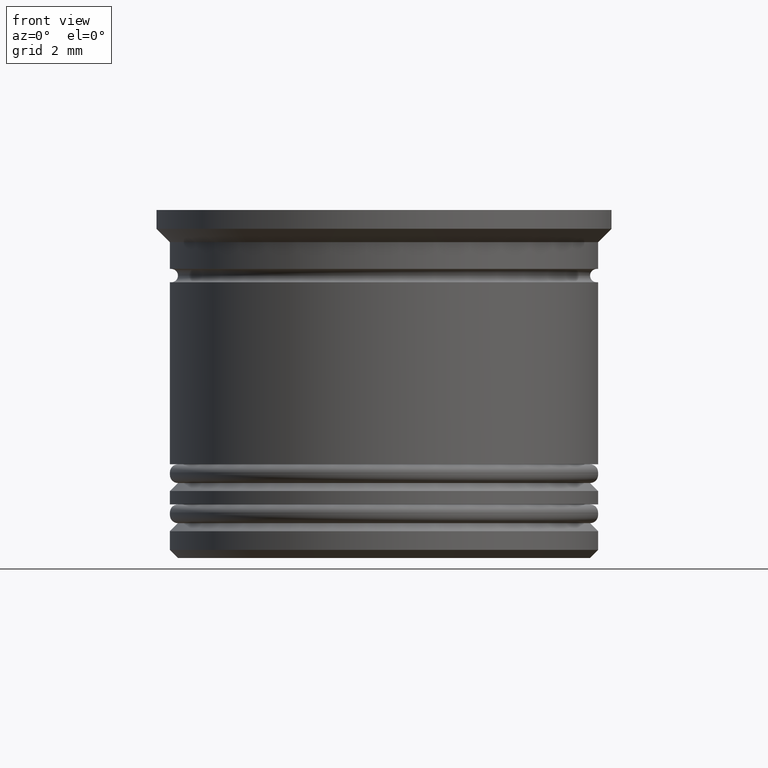
[diagram: clean part render]
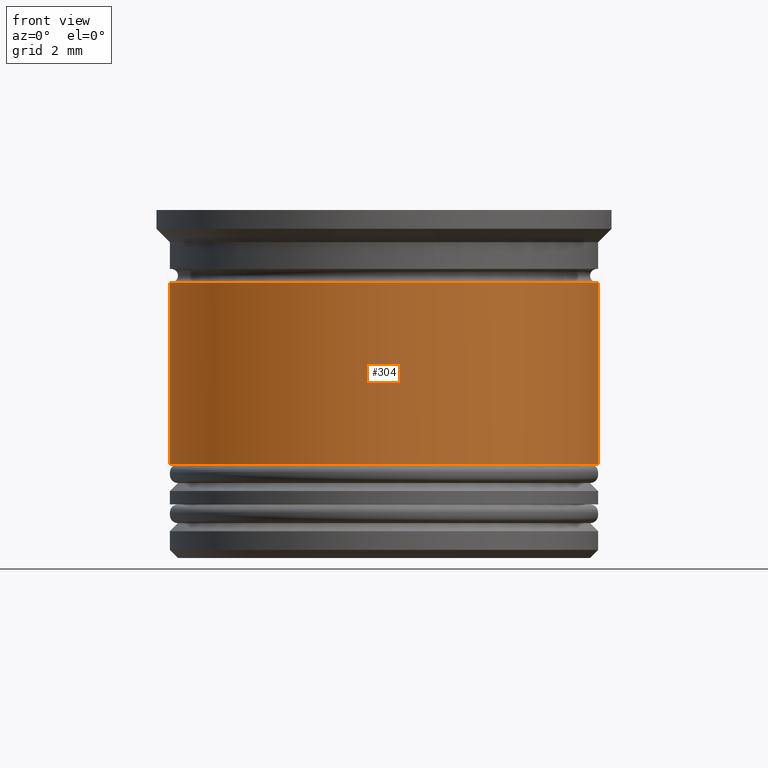
[diagram: same view with one face highlighted and labeled with its STEP entity id]
A machine part, front view. The second image highlights one B-rep face of the part: STEP entity #304.
In plain terms, the highlighted cylindrical surface (partial cylindrical patch) has radius 8 mm, axis along (-0, -0, 1).
Its self-contained STEP definition (entity closure, byte-faithful):
#3 = DIRECTION ( 'NONE',  ( 1.000000000000000000, 0.000000000000000000, 0.000000000000000000 ) ) ;
#15 = VECTOR ( 'NONE', #1909, 1000.000000000000000 ) ;
#40 = AXIS2_PLACEMENT_3D ( 'NONE', #235, #899, #1773 ) ;
#235 = CARTESIAN_POINT ( 'NONE',  ( 0.000000000000000000, 0.000000000000000000, -2.700000000000000178 ) ) ;
#261 = LINE ( 'NONE', #993, #859 ) ;
#304 = ADVANCED_FACE ( 'NONE', ( #405 ), #1180, .T. ) ;
#405 = FACE_OUTER_BOUND ( 'NONE', #1082, .T. ) ;
#468 = VERTEX_POINT ( 'NONE', #1988 ) ;
#575 = DIRECTION ( 'NONE',  ( -0.000000000000000000, -0.000000000000000000, 1.000000000000000000 ) ) ;
#601 = DIRECTION ( 'NONE',  ( 1.000000000000000000, 0.000000000000000000, 0.000000000000000000 ) ) ;
#612 = CARTESIAN_POINT ( 'NONE',  ( -8.000000000000001776, 9.797174393178827630E-16, -9.500000000000000000 ) ) ;
#721 = EDGE_CURVE ( 'NONE', #468, #1244, #977, .T. ) ;
#775 = ORIENTED_EDGE ( 'NONE', *, *, #1273, .T. ) ;
#809 = CARTESIAN_POINT ( 'NONE',  ( 8.000000000000001776, 0.000000000000000000, -9.500000000000000000 ) ) ;
#859 = VECTOR ( 'NONE', #1017, 1000.000000000000000 ) ;
#861 = VERTEX_POINT ( 'NONE', #612 ) ;
#866 = CARTESIAN_POINT ( 'NONE',  ( 0.000000000000000000, 0.000000000000000000, 0.000000000000000000 ) ) ;
#899 = DIRECTION ( 'NONE',  ( -0.000000000000000000, -0.000000000000000000, 1.000000000000000000 ) ) ;
#977 = CIRCLE ( 'NONE', #40, 8.000000000000000000 ) ;
#993 = CARTESIAN_POINT ( 'NONE',  ( 8.000000000000000000, 0.000000000000000000, 0.000000000000000000 ) ) ;
#1017 = DIRECTION ( 'NONE',  ( -0.000000000000000000, -0.000000000000000000, 1.000000000000000000 ) ) ;
#1034 = DIRECTION ( 'NONE',  ( -0.000000000000000000, -0.000000000000000000, 1.000000000000000000 ) ) ;
#1082 = EDGE_LOOP ( 'NONE', ( #1779, #775, #1256, #1309 ) ) ;
#1180 = CYLINDRICAL_SURFACE ( 'NONE', #1778, 8.000000000000000000 ) ;
#1244 = VERTEX_POINT ( 'NONE', #1932 ) ;
#1246 = CIRCLE ( 'NONE', #1906, 8.000000000000001776 ) ;
#1256 = ORIENTED_EDGE ( 'NONE', *, *, #1456, .T. ) ;
#1273 = EDGE_CURVE ( 'NONE', #861, #1795, #1246, .T. ) ;
#1309 = ORIENTED_EDGE ( 'NONE', *, *, #721, .F. ) ;
#1415 = CARTESIAN_POINT ( 'NONE',  ( -8.000000000000000000, 9.797174393178825657E-16, 0.000000000000000000 ) ) ;
#1456 = EDGE_CURVE ( 'NONE', #1795, #1244, #261, .T. ) ;
#1739 = LINE ( 'NONE', #1415, #15 ) ;
#1773 = DIRECTION ( 'NONE',  ( 1.000000000000000000, 0.000000000000000000, 0.000000000000000000 ) ) ;
#1778 = AXIS2_PLACEMENT_3D ( 'NONE', #866, #1034, #601 ) ;
#1779 = ORIENTED_EDGE ( 'NONE', *, *, #1840, .F. ) ;
#1795 = VERTEX_POINT ( 'NONE', #809 ) ;
#1840 = EDGE_CURVE ( 'NONE', #861, #468, #1739, .T. ) ;
#1906 = AXIS2_PLACEMENT_3D ( 'NONE', #1943, #575, #3 ) ;
#1909 = DIRECTION ( 'NONE',  ( -0.000000000000000000, -0.000000000000000000, 1.000000000000000000 ) ) ;
#1932 = CARTESIAN_POINT ( 'NONE',  ( 8.000000000000000000, 0.000000000000000000, -2.700000000000000178 ) ) ;
#1943 = CARTESIAN_POINT ( 'NONE',  ( 0.000000000000000000, 0.000000000000000000, -9.500000000000000000 ) ) ;
#1988 = CARTESIAN_POINT ( 'NONE',  ( -8.000000000000000000, 9.797174393178825657E-16, -2.700000000000000178 ) ) ;